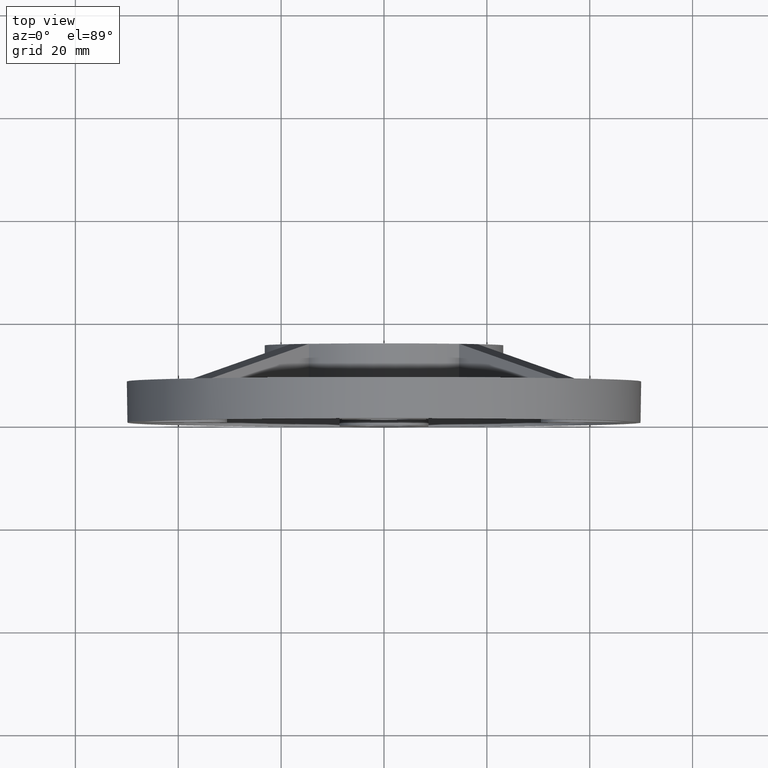
[diagram: clean part render]
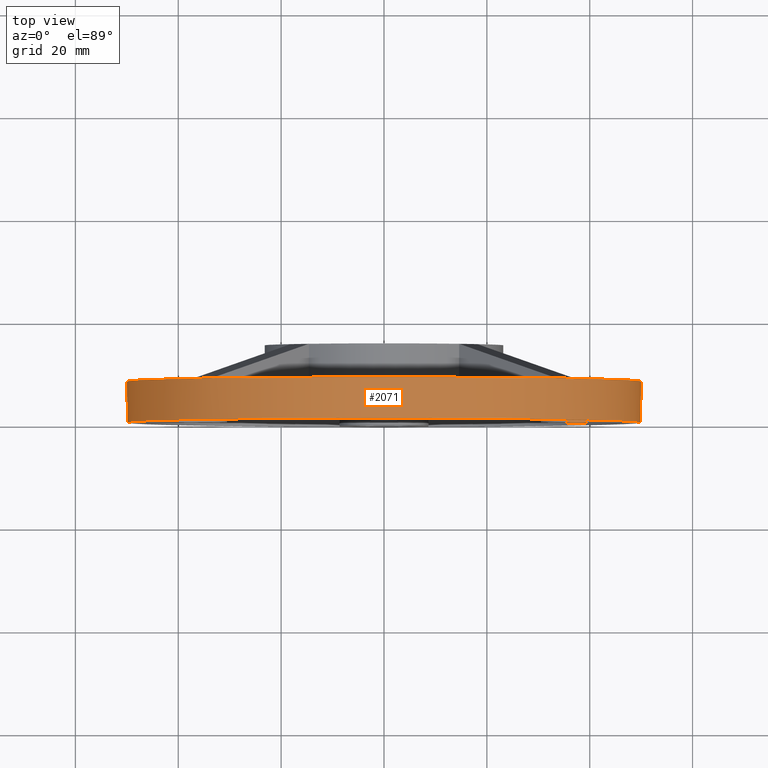
[diagram: same view with one face highlighted and labeled with its STEP entity id]
A machine part, top view. The second image highlights one B-rep face of the part: STEP entity #2071.
In plain terms, the highlighted cylindrical surface (bore or boss wall) has radius 50 mm, axis along (-0, -1, -0).
Its self-contained STEP definition (entity closure, byte-faithful):
#54 = CARTESIAN_POINT ( 'NONE',  ( -34.78034455632263189, 8.035550269566304138, -35.95983938574750027 ) ) ;
#120 = CARTESIAN_POINT ( 'NONE',  ( -37.07888418252991158, 8.000000000000000000, 33.54335027659778490 ) ) ;
#257 = DIRECTION ( 'NONE',  ( 0.000000000000000000, 0.000000000000000000, 1.000000000000000000 ) ) ;
#280 = AXIS2_PLACEMENT_3D ( 'NONE', #4188, #586, #7808 ) ;
#351 = DIRECTION ( 'NONE',  ( 0.000000000000000000, 1.000000000000000000, 0.000000000000000000 ) ) ;
#464 = CARTESIAN_POINT ( 'NONE',  ( 33.54335027659739410, 8.000000000000000000, 37.07888418253026686 ) ) ;
#586 = DIRECTION ( 'NONE',  ( 0.000000000000000000, 1.000000000000000000, 0.000000000000000000 ) ) ;
#608 = EDGE_CURVE ( 'NONE', #7548, #4234, #8936, .T. ) ;
#628 = CARTESIAN_POINT ( 'NONE',  ( 33.54335027659750779, 7.999999999999996447, -37.07888418253015317 ) ) ;
#961 = CARTESIAN_POINT ( 'NONE',  ( -35.95983938574741501, 8.035550269566304138, -34.78034455632273847 ) ) ;
#1207 = EDGE_CURVE ( 'NONE', #6839, #3854, #3277, .T. ) ;
#1446 = AXIS2_PLACEMENT_3D ( 'NONE', #10282, #2198, #257 ) ;
#1558 = CARTESIAN_POINT ( 'NONE',  ( 0.000000000000000000, 8.000000000000000000, 0.000000000000000000 ) ) ;
#1670 = EDGE_CURVE ( 'NONE', #7908, #7908, #3989, .T. ) ;
#1732 = AXIS2_PLACEMENT_3D ( 'NONE', #10459, #9680, #5005 ) ;
#1910 = CARTESIAN_POINT ( 'NONE',  ( -37.07888418253016738, 7.999999999999996447, -33.54335027659750779 ) ) ;
#2071 = ADVANCED_FACE ( 'NONE', ( #7300, #10566 ), #8440, .T. ) ;
#2114 = CARTESIAN_POINT ( 'NONE',  ( 37.07888418253015317, 8.000000000000000000, 33.54335027659752200 ) ) ;
#2154 = EDGE_CURVE ( 'NONE', #6248, #4234, #3633, .T. ) ;
#2198 = DIRECTION ( 'NONE',  ( 0.000000000000000000, 1.000000000000000000, 0.000000000000000000 ) ) ;
#2358 = ORIENTED_EDGE ( 'NONE', *, *, #7580, .F. ) ;
#2525 = CARTESIAN_POINT ( 'NONE',  ( 0.000000000000000000, 0.000000000000000000, 50.00000000000000000 ) ) ;
#2565 = AXIS2_PLACEMENT_3D ( 'NONE', #5053, #351, #10338 ) ;
#2738 = DIRECTION ( 'NONE',  ( 0.000000000000000000, 1.000000000000000000, 0.000000000000000000 ) ) ;
#3124 =( BOUNDED_CURVE ( )  B_SPLINE_CURVE ( 3, ( #1910, #961, #54, #11847 ),
 .UNSPECIFIED., .F., .F. ) 
 B_SPLINE_CURVE_WITH_KNOTS ( ( 4, 4 ),
 ( 3.091571796784022386, 3.191613510395562958 ),
 .UNSPECIFIED. ) 
 CURVE ( )  GEOMETRIC_REPRESENTATION_ITEM ( )  RATIONAL_B_SPLINE_CURVE ( ( 1.000000000000000000, 0.9991661451812726691, 0.9991661451812726691, 1.000000000000000000 ) ) 
 REPRESENTATION_ITEM ( '' )  );
#3214 = EDGE_LOOP ( 'NONE', ( #4611 ) ) ;
#3224 = ORIENTED_EDGE ( 'NONE', *, *, #5097, .F. ) ;
#3229 = ORIENTED_EDGE ( 'NONE', *, *, #1207, .T. ) ;
#3277 =( BOUNDED_CURVE ( )  B_SPLINE_CURVE ( 3, ( #4771, #8365, #3821, #10224 ),
 .UNSPECIFIED., .F., .F. ) 
 B_SPLINE_CURVE_WITH_KNOTS ( ( 4, 4 ),
 ( 3.091571796784033044, 3.191613510395562958 ),
 .UNSPECIFIED. ) 
 CURVE ( )  GEOMETRIC_REPRESENTATION_ITEM ( )  RATIONAL_B_SPLINE_CURVE ( ( 1.000000000000000000, 0.9991661451812726691, 0.9991661451812726691, 1.000000000000000000 ) ) 
 REPRESENTATION_ITEM ( '' )  );
#3413 = VERTEX_POINT ( 'NONE', #4580 ) ;
#3575 = EDGE_LOOP ( 'NONE', ( #4583, #3229, #2358, #11671, #3224, #11700, #8702, #9441 ) ) ;
#3633 =( BOUNDED_CURVE ( )  B_SPLINE_CURVE ( 3, ( #628, #5964, #7812, #6922 ),
 .UNSPECIFIED., .F., .T. ) 
 B_SPLINE_CURVE_WITH_KNOTS ( ( 4, 4 ),
 ( 3.091571796784026382, 3.191613510395562958 ),
 .UNSPECIFIED. ) 
 CURVE ( )  GEOMETRIC_REPRESENTATION_ITEM ( )  RATIONAL_B_SPLINE_CURVE ( ( 1.000000000000000000, 0.9991661451812726691, 0.9991661451812726691, 1.000000000000000000 ) ) 
 REPRESENTATION_ITEM ( '' )  );
#3821 = CARTESIAN_POINT ( 'NONE',  ( -35.95983938574726579, 8.035550269566304138, 34.78034455632288768 ) ) ;
#3854 = VERTEX_POINT ( 'NONE', #120 ) ;
#3989 = CIRCLE ( 'NONE', #6272, 50.00000000000000000 ) ;
#4098 = EDGE_CURVE ( 'NONE', #7548, #3413, #10369, .T. ) ;
#4188 = CARTESIAN_POINT ( 'NONE',  ( 0.000000000000000000, 8.000000000000000000, 0.000000000000000000 ) ) ;
#4234 = VERTEX_POINT ( 'NONE', #4298 ) ;
#4298 = CARTESIAN_POINT ( 'NONE',  ( 37.07888418253015317, 8.000000000000000000, -33.54335027659752910 ) ) ;
#4580 = CARTESIAN_POINT ( 'NONE',  ( 33.54335027659739410, 8.000000000000000000, 37.07888418253026686 ) ) ;
#4583 = ORIENTED_EDGE ( 'NONE', *, *, #5526, .F. ) ;
#4611 = ORIENTED_EDGE ( 'NONE', *, *, #1670, .T. ) ;
#4674 = AXIS2_PLACEMENT_3D ( 'NONE', #1558, #11428, #6970 ) ;
#4714 = CARTESIAN_POINT ( 'NONE',  ( -37.07888418253016738, 7.999999999999996447, -33.54335027659750779 ) ) ;
#4771 = CARTESIAN_POINT ( 'NONE',  ( -33.54335027659750779, 8.000000000000000000, 37.07888418253013896 ) ) ;
#5005 = DIRECTION ( 'NONE',  ( 0.000000000000000000, 0.000000000000000000, -1.000000000000000000 ) ) ;
#5053 = CARTESIAN_POINT ( 'NONE',  ( 0.000000000000000000, 8.000000000000000000, 0.000000000000000000 ) ) ;
#5097 = EDGE_CURVE ( 'NONE', #6248, #8305, #7413, .T. ) ;
#5378 = DIRECTION ( 'NONE',  ( 0.000000000000000000, 0.000000000000000000, 1.000000000000000000 ) ) ;
#5526 = EDGE_CURVE ( 'NONE', #6839, #3413, #6126, .T. ) ;
#5964 = CARTESIAN_POINT ( 'NONE',  ( 34.78034455632271005, 8.035550269566300585, -35.95983938574744343 ) ) ;
#6126 = CIRCLE ( 'NONE', #280, 50.00000000000000000 ) ;
#6248 = VERTEX_POINT ( 'NONE', #8523 ) ;
#6272 = AXIS2_PLACEMENT_3D ( 'NONE', #7173, #2738, #5378 ) ;
#6742 = CARTESIAN_POINT ( 'NONE',  ( 35.95983938574739369, 8.035550269566304138, 34.78034455632275268 ) ) ;
#6839 = VERTEX_POINT ( 'NONE', #8538 ) ;
#6922 = CARTESIAN_POINT ( 'NONE',  ( 37.07888418253015317, 8.000000000000000000, -33.54335027659752910 ) ) ;
#6970 = DIRECTION ( 'NONE',  ( 0.000000000000000000, 0.000000000000000000, 1.000000000000000000 ) ) ;
#7173 = CARTESIAN_POINT ( 'NONE',  ( 0.000000000000000000, 0.000000000000000000, 0.000000000000000000 ) ) ;
#7300 = FACE_OUTER_BOUND ( 'NONE', #3575, .T. ) ;
#7413 = CIRCLE ( 'NONE', #4674, 50.00000000000000000 ) ;
#7548 = VERTEX_POINT ( 'NONE', #2114 ) ;
#7580 = EDGE_CURVE ( 'NONE', #10158, #3854, #10753, .T. ) ;
#7679 = CARTESIAN_POINT ( 'NONE',  ( 34.78034455632262478, 8.035550269566304138, 35.95983938574750738 ) ) ;
#7808 = DIRECTION ( 'NONE',  ( 0.000000000000000000, 0.000000000000000000, 1.000000000000000000 ) ) ;
#7812 = CARTESIAN_POINT ( 'NONE',  ( 35.95983938574743632, 8.035550269566298809, -34.78034455632272426 ) ) ;
#7908 = VERTEX_POINT ( 'NONE', #2525 ) ;
#8305 = VERTEX_POINT ( 'NONE', #10197 ) ;
#8365 = CARTESIAN_POINT ( 'NONE',  ( -34.78034455632261768, 8.035550269566304138, 35.95983938574752159 ) ) ;
#8440 = CYLINDRICAL_SURFACE ( 'NONE', #1732, 50.00000000000000000 ) ;
#8523 = CARTESIAN_POINT ( 'NONE',  ( 33.54335027659750779, 7.999999999999996447, -37.07888418253015317 ) ) ;
#8538 = CARTESIAN_POINT ( 'NONE',  ( -33.54335027659750779, 8.000000000000000000, 37.07888418253013896 ) ) ;
#8702 = ORIENTED_EDGE ( 'NONE', *, *, #608, .F. ) ;
#8936 = CIRCLE ( 'NONE', #2565, 50.00000000000000000 ) ;
#9441 = ORIENTED_EDGE ( 'NONE', *, *, #4098, .T. ) ;
#9680 = DIRECTION ( 'NONE',  ( -0.000000000000000000, -1.000000000000000000, -0.000000000000000000 ) ) ;
#10158 = VERTEX_POINT ( 'NONE', #4714 ) ;
#10197 = CARTESIAN_POINT ( 'NONE',  ( -33.54335027659739410, 8.000000000000000000, -37.07888418253026686 ) ) ;
#10224 = CARTESIAN_POINT ( 'NONE',  ( -37.07888418252991158, 8.000000000000000000, 33.54335027659778490 ) ) ;
#10282 = CARTESIAN_POINT ( 'NONE',  ( 0.000000000000000000, 8.000000000000000000, 0.000000000000000000 ) ) ;
#10338 = DIRECTION ( 'NONE',  ( 0.000000000000000000, 0.000000000000000000, 1.000000000000000000 ) ) ;
#10369 =( BOUNDED_CURVE ( )  B_SPLINE_CURVE ( 3, ( #11364, #6742, #7679, #464 ),
 .UNSPECIFIED., .F., .T. ) 
 B_SPLINE_CURVE_WITH_KNOTS ( ( 4, 4 ),
 ( 3.091571796784022830, 3.191613510395562958 ),
 .UNSPECIFIED. ) 
 CURVE ( )  GEOMETRIC_REPRESENTATION_ITEM ( )  RATIONAL_B_SPLINE_CURVE ( ( 1.000000000000000000, 0.9991661451812726691, 0.9991661451812726691, 1.000000000000000000 ) ) 
 REPRESENTATION_ITEM ( '' )  );
#10459 = CARTESIAN_POINT ( 'NONE',  ( 0.000000000000000000, 8.000000000000000000, 0.000000000000000000 ) ) ;
#10551 = EDGE_CURVE ( 'NONE', #10158, #8305, #3124, .T. ) ;
#10566 = FACE_OUTER_BOUND ( 'NONE', #3214, .T. ) ;
#10753 = CIRCLE ( 'NONE', #1446, 50.00000000000000000 ) ;
#11364 = CARTESIAN_POINT ( 'NONE',  ( 37.07888418253015317, 8.000000000000000000, 33.54335027659752200 ) ) ;
#11428 = DIRECTION ( 'NONE',  ( 0.000000000000000000, 1.000000000000000000, 0.000000000000000000 ) ) ;
#11671 = ORIENTED_EDGE ( 'NONE', *, *, #10551, .T. ) ;
#11700 = ORIENTED_EDGE ( 'NONE', *, *, #2154, .T. ) ;
#11847 = CARTESIAN_POINT ( 'NONE',  ( -33.54335027659739410, 8.000000000000000000, -37.07888418253026686 ) ) ;